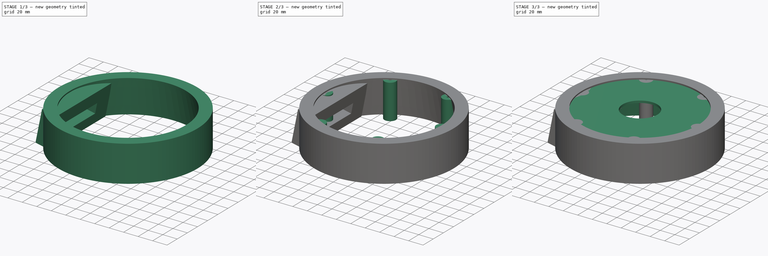
[diagram: build sequence overview — one tinted view per stage of 3, left to right]
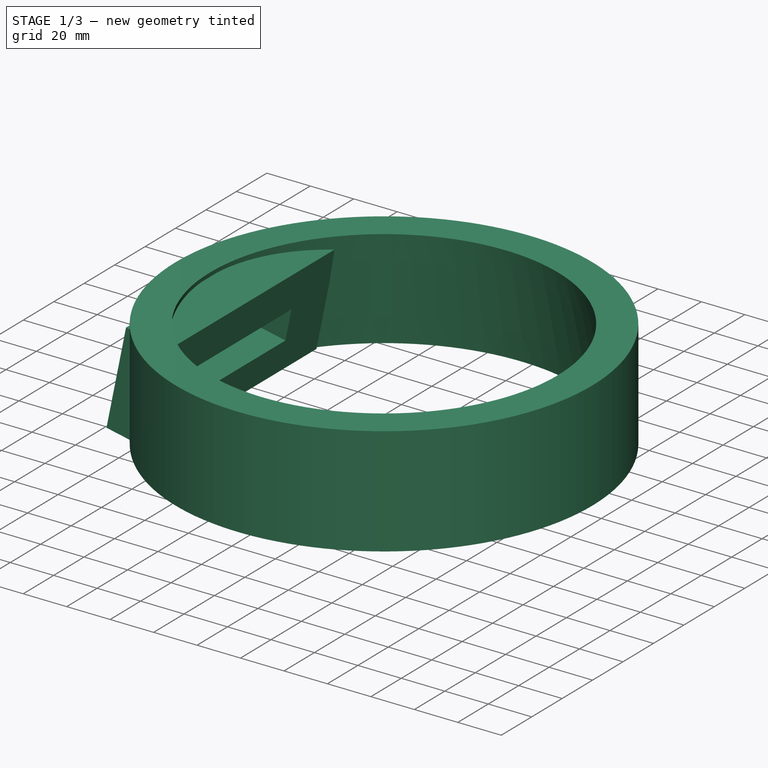
[diagram: stage 1 of 3 — iso view after this stage's code; geometry added in this stage tinted green]
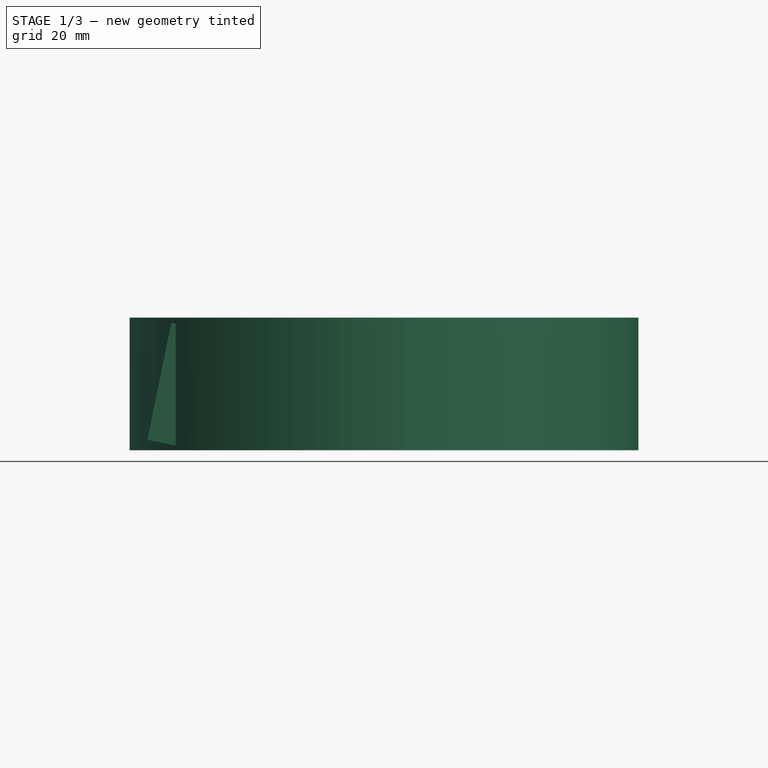
[diagram: stage 1 of 3 — front view after this stage's code; geometry added in this stage tinted green]
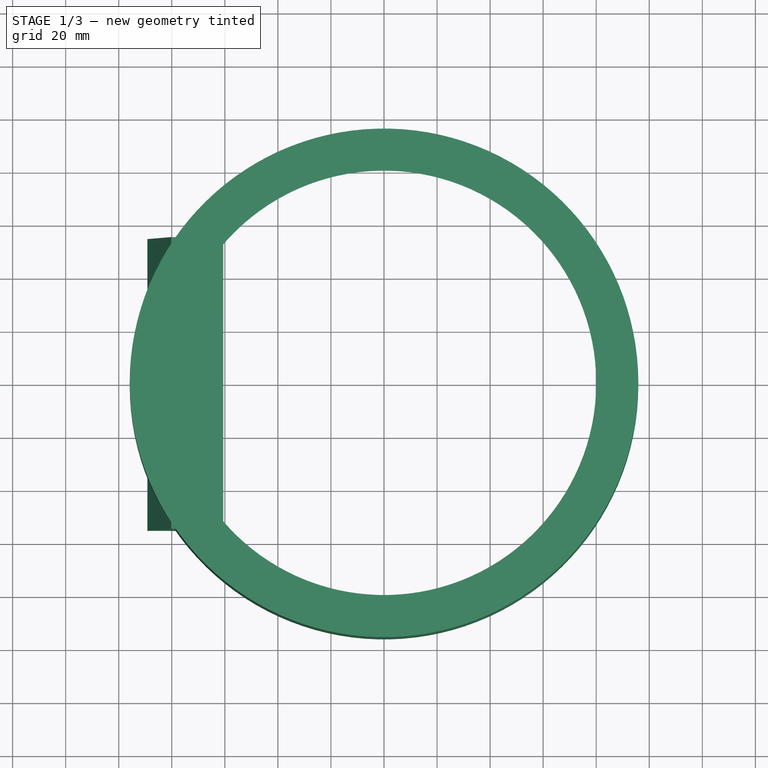
[diagram: stage 1 of 3 — top view after this stage's code; geometry added in this stage tinted green]
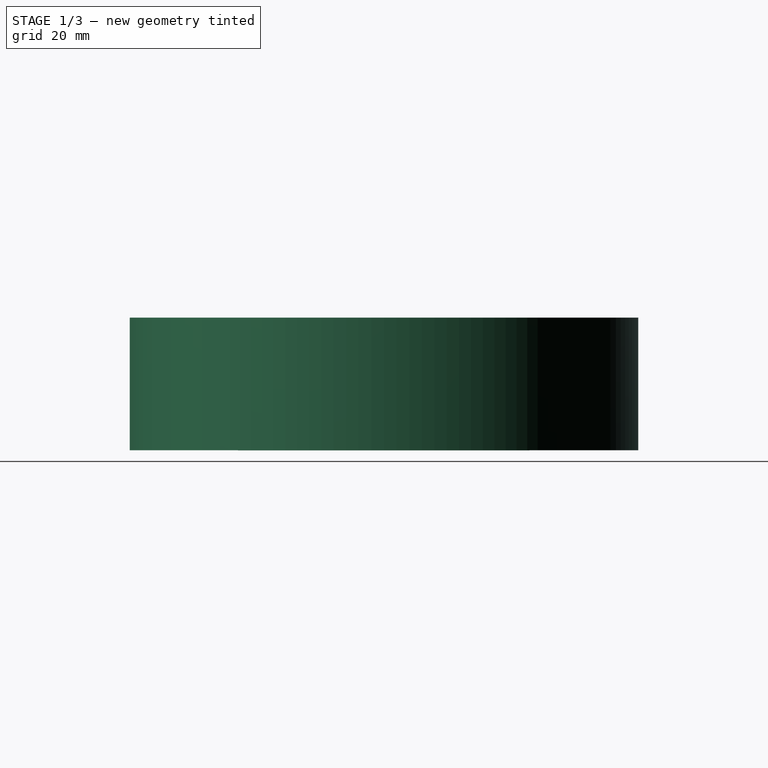
[diagram: stage 1 of 3 — right view after this stage's code; geometry added in this stage tinted green]
FCSTD DOCUMENT  (FreeCAD 0.16R6707 (Git))
Label: top
License: All rights reserved
LicenseURL: http://en.wikipedia.org/wiki/All_rights_reserved
objects: Sketcher::SketchObject×5, PartDesign::Revolution×2, PartDesign::Pad×2, Part::MultiFuse×1, Part::Cut×1, Part::Feature×1
note: 16 computed .brp shape members not serialized (recipe doc carries the construction recipe); baked Part::Feature solids carry a one-line shape summary decoded from their .brp

FEATURE [Sketcher::SketchObject] Sketch002  label="Outer Cut"
  Placement = pos=(0,0,0) rot=(1,0,0;1.5708rad)
  sketch-geometry (4):
    g0: LineSegment StartX=-80 StartY=50 StartZ=0 EndX=-90 EndY=0 EndZ=0
    g1: LineSegment StartX=-80 StartY=50 StartZ=0 EndX=-95.8804 EndY=50 EndZ=0
    g2: LineSegment StartX=-95.8804 StartY=50 StartZ=0 EndX=-95.8804 EndY=0 EndZ=0
    g3: LineSegment StartX=-95.8804 StartY=0 StartZ=0 EndX=-90 EndY=0 EndZ=0
  constraints (10):
    c: PointOnObject(g0,g-1)
    c: DistanceX(g0,g-1) = 90
    c: DistanceX(g0,g-1) = 80
    c: Coincident(g0,g1)
    c: Horizontal(g1)
    c: Coincident(g1,g2)
    c: Vertical(g2)
    c: Coincident(g2,g3)
    c: Horizontal(g3)
    c: Coincident(g3,g0)
FEATURE [PartDesign::Revolution] Revolution001
  Angle = 360
  Axis = (0,0,1)
  Base = (0,0,0)
  Placement = pos=(0,0,0) rot=(1,0,0;1.5708rad)
  ReferenceAxis = -> Sketch002 [V_Axis]
  Sketch = -> Sketch002
FEATURE [Part::Cut] Cut
  Base = -> Fusion
  Tool = -> Revolution001
FEATURE [Sketcher::SketchObject] Sketch003  label="Aux01"
  Placement = pos=(0,0,0) rot=(1,0,0;1.5708rad)
  sketch-geometry (4):
    g0: LineSegment StartX=-79.8003 StartY=49.985 StartZ=0 EndX=-90 EndY=0 EndZ=0
    g1: LineSegment StartX=-90 StartY=0 StartZ=0 EndX=-87 EndY=0 EndZ=0
    g2: LineSegment StartX=-87 StartY=0 StartZ=0 EndX=-76.8003 EndY=49.985 EndZ=0
    g3: LineSegment StartX=-79.8003 StartY=49.985 StartZ=0 EndX=-76.8003 EndY=49.985 EndZ=0
  constraints (11):
    c: PointOnObject(g0,g-1)
    c: Coincident(g0,g1)
    c: PointOnObject(g1,g-1)
    c: Coincident(g1,g2)
    c: DistanceX(g0,g-1) = 90
    c: DistanceX(g0,g1) = 3
    c: Parallel(g0,g2)
    c: Coincident(g0,g3)
    c: Horizontal(g3)
    c: DistanceX(g0,g3) = 3
    c: Coincident(g2,g3)
FEATURE [Sketcher::SketchObject] Sketch004  label="Display"
  Placement = pos=(-86.4024,0,17.6308) rot=(-0.632481,0,0.774576;3.14159rad)
  sketch-geometry (8):
    g0: LineSegment StartX=-15.5 StartY=16.8564 StartZ=0 EndX=-1.5 EndY=16.8564 EndZ=0
    g1: LineSegment StartX=-1.5 StartY=16.8564 StartZ=0 EndX=-1.5 EndY=-48.1436 EndZ=0
    g2: LineSegment StartX=-1.5 StartY=-48.1436 StartZ=0 EndX=-15.5 EndY=-48.1436 EndZ=0
    g3: LineSegment StartX=-15.5 StartY=-48.1436 StartZ=0 EndX=-15.5 EndY=16.8564 EndZ=0
    g4: LineSegment StartX=-31 StartY=55 StartZ=0 EndX=14 EndY=55 EndZ=0
    g5: LineSegment StartX=14 StartY=55 StartZ=0 EndX=14 EndY=-55 EndZ=0
    g6: LineSegment StartX=14 StartY=-55 StartZ=0 EndX=-31 EndY=-55 EndZ=0
    g7: LineSegment StartX=-31 StartY=-55 StartZ=0 EndX=-31 EndY=55 EndZ=0
  constraints (23):
    c: Coincident(g0,g1)
    c: Coincident(g1,g2)
    c: Coincident(g2,g3)
    c: Coincident(g3,g0)
    c: Horizontal(g0)
    c: Horizontal(g2)
    c: Vertical(g1)
    c: Vertical(g3)
    c: DistanceX(g2,g1) = 14
    c: DistanceY(g1,g0) = 65
    c: Coincident(g4,g5)
    c: Coincident(g5,g6)
    c: Coincident(g6,g7)
    c: Coincident(g7,g4)
    c: Horizontal(g4)
    c: Horizontal(g6)
    c: Vertical(g5)
    c: Vertical(g7)
    c: Symmetric(g6,g4,g-1)
    c: DistanceY(g6,g4) = 110
    c: DistanceX(g6,g5) = 45
    c: DistanceX(g-1,g5) = 14
    c: DistanceX(g1,g5) = 15.5
FEATURE [Part::Feature] Cut001
  shape: bbox 180 x 180 x 50 mm, 39 faces (baked)
FEATURE [PartDesign::Pad] Pad001
  Length = 20
  Length2 = 100
  Placement = pos=(-86.4024,0,17.6308) rot=(-0.632481,0,0.774576;3.14159rad)
  Reversed = true
  Sketch = -> Sketch004
  Type = 0
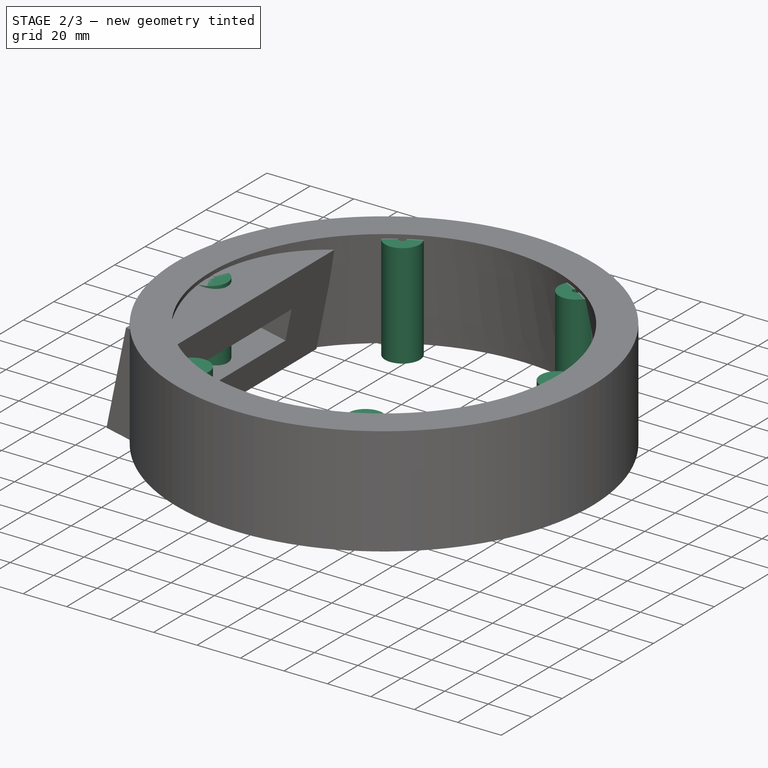
[diagram: stage 2 of 3 — iso view after this stage's code; geometry added in this stage tinted green]
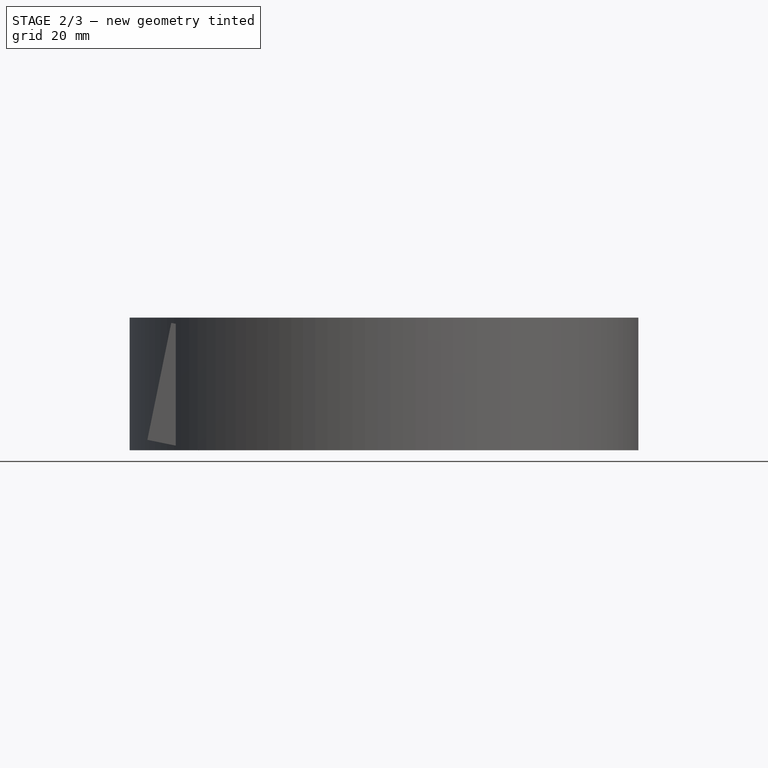
[diagram: stage 2 of 3 — front view after this stage's code; geometry added in this stage tinted green]
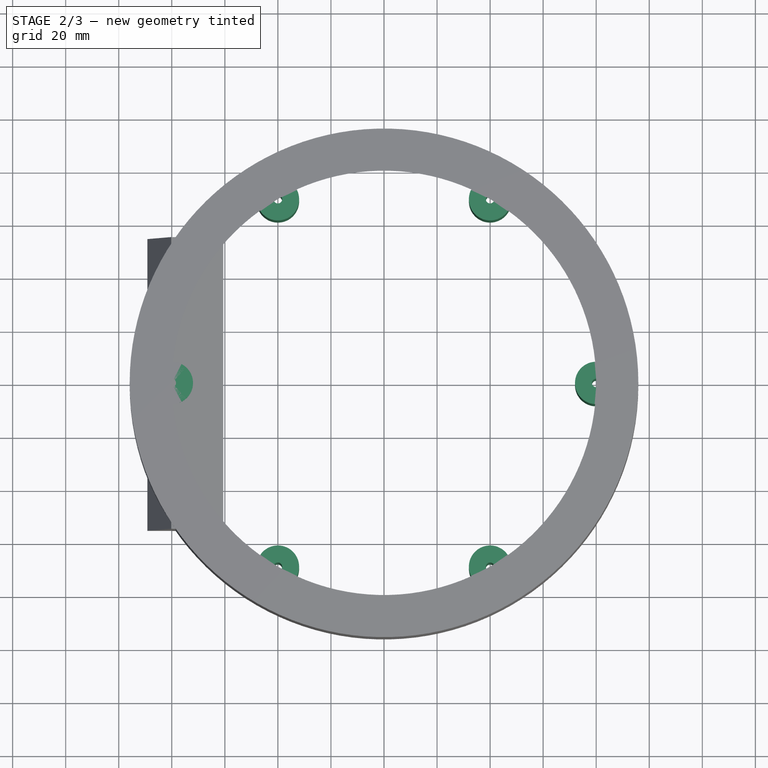
[diagram: stage 2 of 3 — top view after this stage's code; geometry added in this stage tinted green]
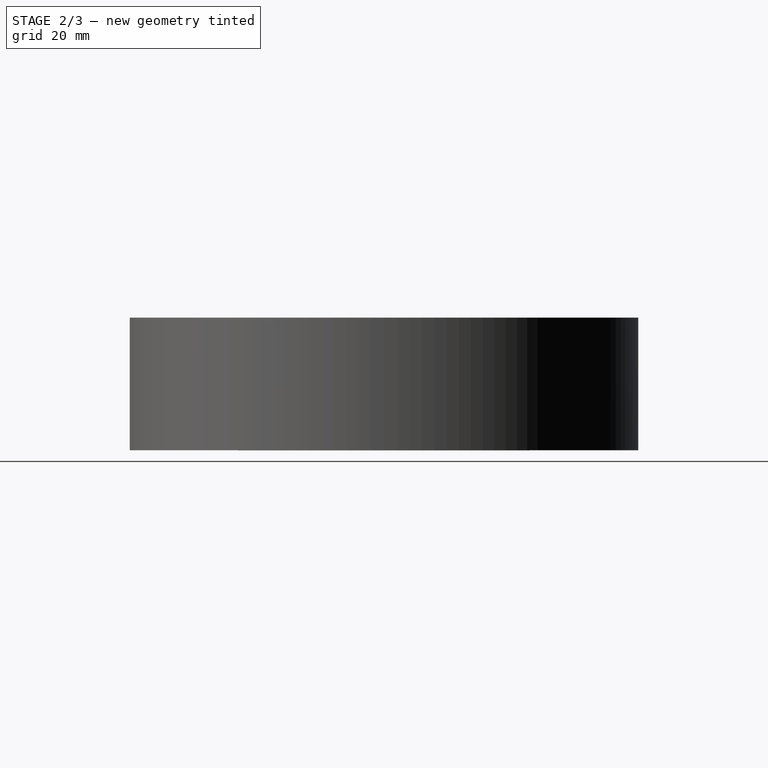
[diagram: stage 2 of 3 — right view after this stage's code; geometry added in this stage tinted green]
FEATURE [Sketcher::SketchObject] Sketch001  label="Screw Pillars"
  sketch-geometry (19):
    g0: LineSegment [constr] StartX=40 StartY=69.282 StartZ=0 EndX=-40 EndY=69.282 EndZ=0
    g1: LineSegment [constr] StartX=-40 StartY=69.282 StartZ=0 EndX=-80 EndY=0 EndZ=0
    g2: LineSegment [constr] StartX=-80 StartY=0 StartZ=0 EndX=-40 EndY=-69.282 EndZ=0
    g3: LineSegment [constr] StartX=-40 StartY=-69.282 StartZ=0 EndX=40 EndY=-69.282 EndZ=0
    g4: LineSegment [constr] StartX=40 StartY=-69.282 StartZ=0 EndX=80 EndY=0 EndZ=0
    g5: LineSegment [constr] StartX=80 StartY=0 StartZ=0 EndX=40 EndY=69.282 EndZ=0
    g6: Circle [constr] CenterX=0 CenterY=0 CenterZ=0 NormalX=0 NormalY=0 NormalZ=1 Radius=80
    g7: Circle CenterX=-40 CenterY=69.282 CenterZ=0 NormalX=0 NormalY=0 NormalZ=1 Radius=8
    g8: Circle CenterX=40 CenterY=69.282 CenterZ=0 NormalX=0 NormalY=0 NormalZ=1 Radius=8
    g9: Circle CenterX=80 CenterY=0 CenterZ=0 NormalX=0 NormalY=0 NormalZ=1 Radius=8
    g10: Circle CenterX=40 CenterY=-69.282 CenterZ=0 NormalX=0 NormalY=0 NormalZ=1 Radius=8
    g11: Circle CenterX=-40 CenterY=-69.282 CenterZ=0 NormalX=0 NormalY=0 NormalZ=1 Radius=8
    g12: Circle CenterX=-80 CenterY=0 CenterZ=0 NormalX=0 NormalY=0 NormalZ=1 Radius=8
    g13: Circle CenterX=-40 CenterY=69.282 CenterZ=0 NormalX=0 NormalY=0 NormalZ=1 Radius=1.6
    g14: Circle CenterX=80 CenterY=0 CenterZ=0 NormalX=0 NormalY=0 NormalZ=1 Radius=1.6
    g15: Circle CenterX=40 CenterY=-69.282 CenterZ=0 NormalX=0 NormalY=0 NormalZ=1 Radius=1.6
    g16: Circle CenterX=-40 CenterY=-69.282 CenterZ=0 NormalX=0 NormalY=0 NormalZ=1 Radius=1.6
    g17: Circle CenterX=-80 CenterY=0 CenterZ=0 NormalX=0 NormalY=0 NormalZ=1 Radius=1.6
    g18: Circle CenterX=40 CenterY=69.282 CenterZ=0 NormalX=0 NormalY=0 NormalZ=1 Radius=1.6
  constraints (40):
    c: Coincident(g0,g1)
    c: Coincident(g1,g2)
    c: Coincident(g2,g3)
    c: Coincident(g3,g4)
    c: Coincident(g4,g5)
    c: Coincident(g5,g0)
    c: Equal(g0, g1-g5) x5
    c: PointOnObject(g0,g6)
    c: PointOnObject(g1,g6)
    c: PointOnObject(g2,g6)
    c: PointOnObject(g3,g6)
    c: PointOnObject(g4,g6)
    c: PointOnObject(g5,g6)
    c: PointOnObject(g4,g-1)
    c: Radius(g6) = 80
    c: Coincident(g7,g0)
    c: Coincident(g8,g0)
    c: Coincident(g9,g4)
    c: Coincident(g10,g3)
    c: Coincident(g11,g2)
    c: Coincident(g12,g1)
    c: Radius(g7) = 8
    c: Equal(g7,g8)
    c: Equal(g8,g9)
    c: Equal(g9,g10)
    c: Equal(g10,g11)
    c: Equal(g11,g12)
    c: Coincident(g13,g0)
    c: Coincident(g14,g4)
    c: Coincident(g15,g3)
    c: Coincident(g16,g2)
    c: Coincident(g17,g1)
    c: Coincident(g18,g0)
    c: Radius(g13) = 1.6
    c: Equal(g13,g18)
    c: Equal(g18,g14)
    c: Equal(g14,g15)
    c: Equal(g15,g16)
    c: Equal(g16,g17)
    c: Coincident(g6,g-1)
FEATURE [PartDesign::Pad] Pad
  Length = 48
  Length2 = 100
  Sketch = -> Sketch001
  Type = 0
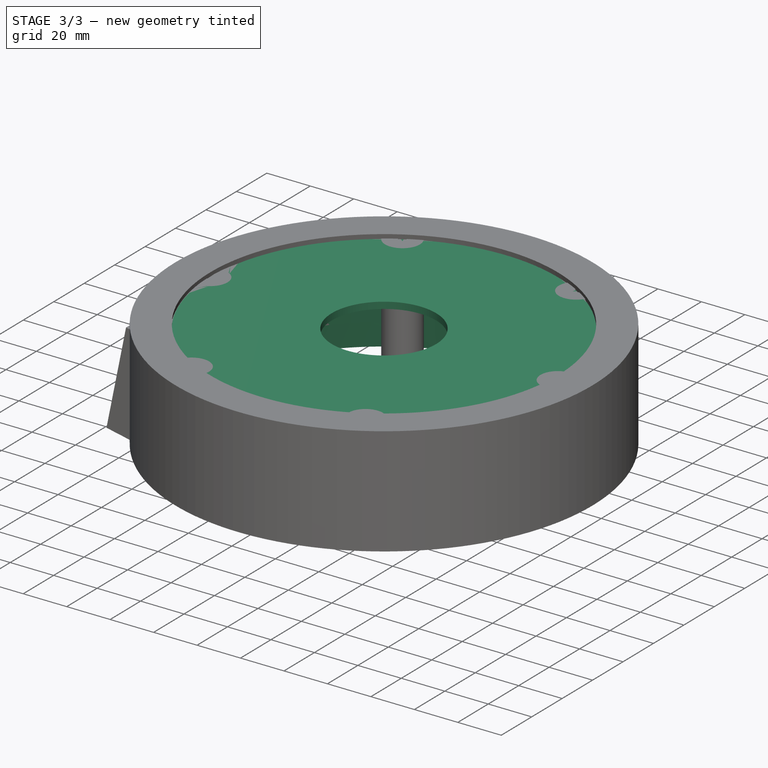
[diagram: stage 3 of 3 — iso view after this stage's code; geometry added in this stage tinted green]
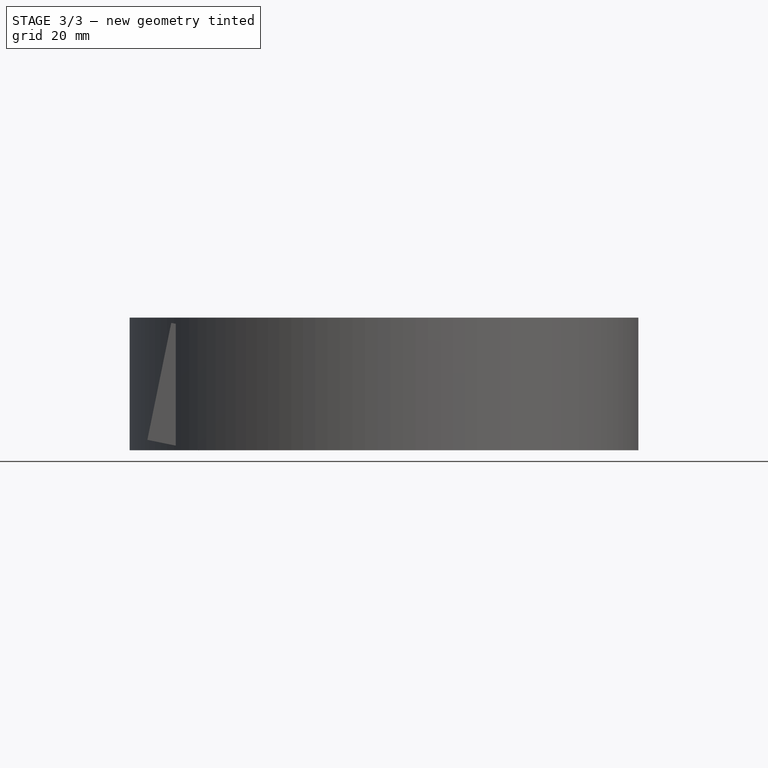
[diagram: stage 3 of 3 — front view after this stage's code; geometry added in this stage tinted green]
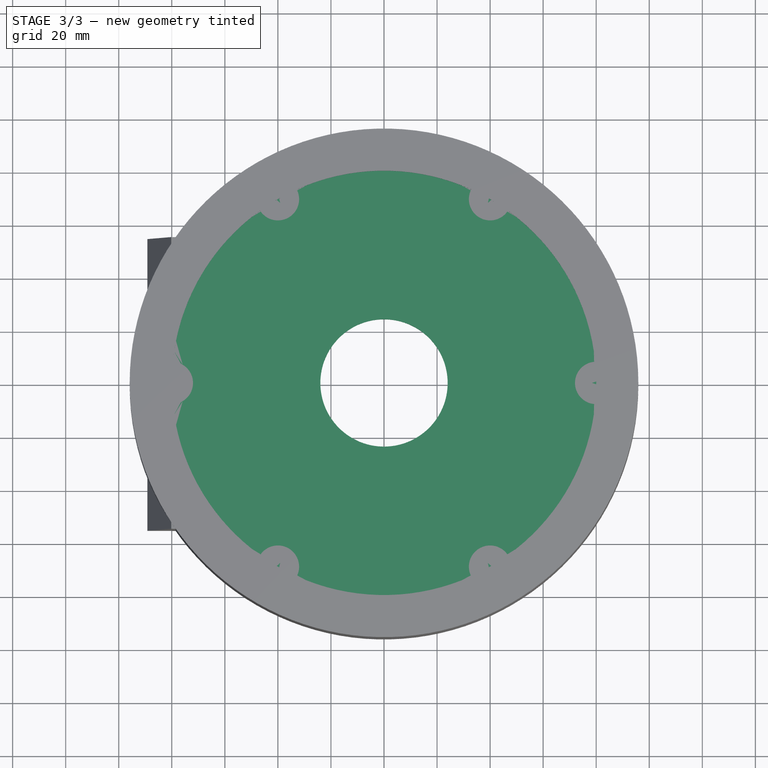
[diagram: stage 3 of 3 — top view after this stage's code; geometry added in this stage tinted green]
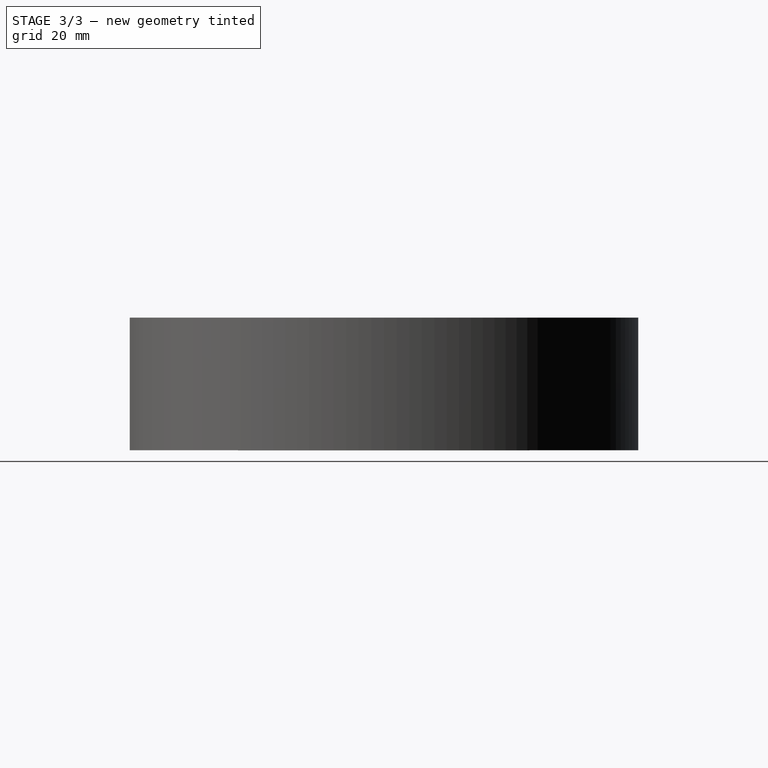
[diagram: stage 3 of 3 — right view after this stage's code; geometry added in this stage tinted green]
FEATURE [Sketcher::SketchObject] Sketch  label="Body"
  Placement = pos=(0,0,0) rot=(1,0,0;1.5708rad)
  sketch-geometry (7):
    g0: LineSegment StartX=-80 StartY=48 StartZ=0 EndX=-90 EndY=1.7029e-08 EndZ=0
    g1: LineSegment StartX=-90 StartY=1.7029e-08 StartZ=0 EndX=-87 EndY=-1.8154e-08 EndZ=0
    g2: LineSegment StartX=-87 StartY=-1.8154e-08 StartZ=0 EndX=-77.6248 EndY=45 EndZ=0
    g3: LineSegment StartX=-77.6248 StartY=45 StartZ=0 EndX=-24 EndY=45 EndZ=0
    g4: LineSegment StartX=-24 StartY=45 StartZ=0 EndX=-24 EndY=48 EndZ=0
    g5: LineSegment StartX=-80 StartY=48 StartZ=0 EndX=-80 EndY=48 EndZ=0
    g6: LineSegment StartX=-80 StartY=48 StartZ=0 EndX=-24 EndY=48 EndZ=0
  constraints (21):
    c: PointOnObject(g0,g-1)
    c: Coincident(g0,g1)
    c: PointOnObject(g1,g-1)
    c: Coincident(g1,g2)
    c: Coincident(g2,g3)
    c: Horizontal(g3)
    c: Coincident(g3,g4)
    c: DistanceX(g0,g-1) = 90
    c: DistanceX(g0,g-1) = 80
    c: DistanceX(g0,g1) = 3
    c: Parallel(g0,g2)
    c: DistanceY(g2,g0) = 3
    c: Vertical(g4)
    c: DistanceX(g3,g-1) = 24
    c: Vertical(g5)
    c: Coincident(g5,g6)
    c: Horizontal(g6)
    c: Coincident(g6,g4)
    c: Equal(g1,g4)
    c: DistanceY(g-1,g4) = 48
    c: Coincident(g5,g0)
FEATURE [PartDesign::Revolution] Revolution
  Angle = 360
  Axis = (0,0,1)
  Base = (0,0,0)
  Placement = pos=(0,0,0) rot=(1,0,0;1.5708rad)
  ReferenceAxis = -> Sketch [V_Axis]
  Sketch = -> Sketch
FEATURE [Part::MultiFuse] Fusion
  Shapes = -> [Pad,Revolution]
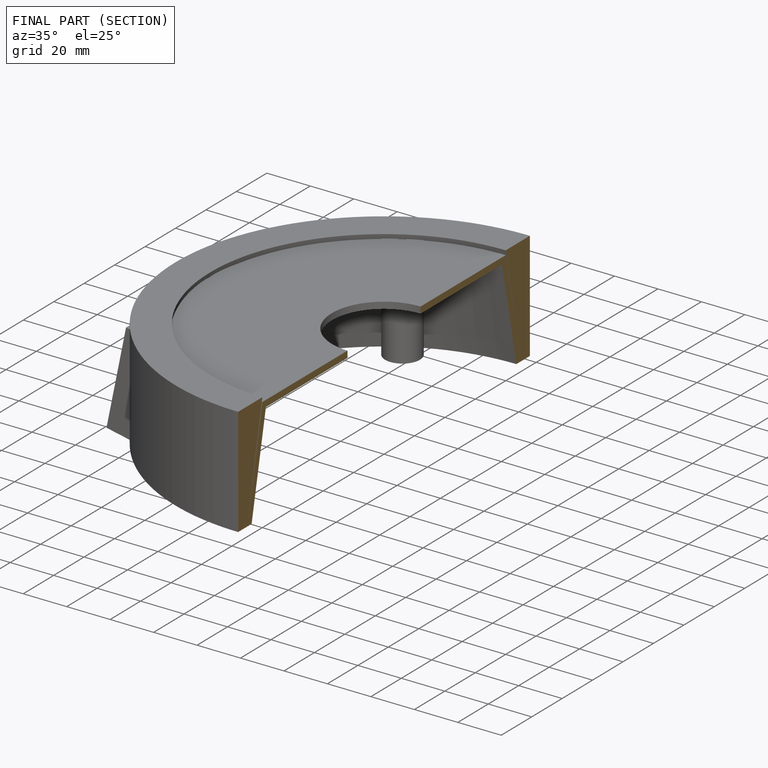
[diagram: finished part — half-section view (interior)]
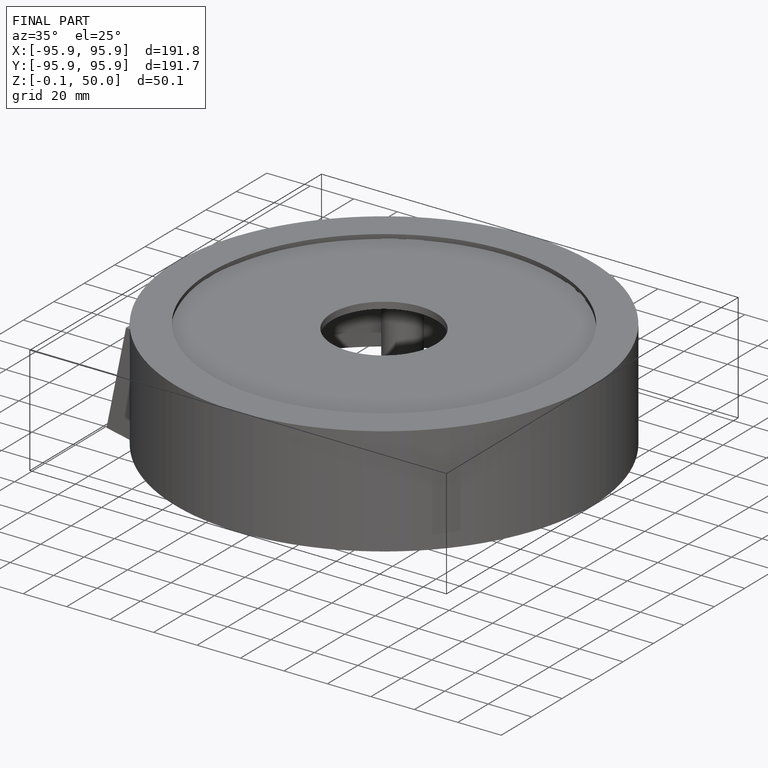
[diagram: finished part — iso view with bounding-box wireframe]
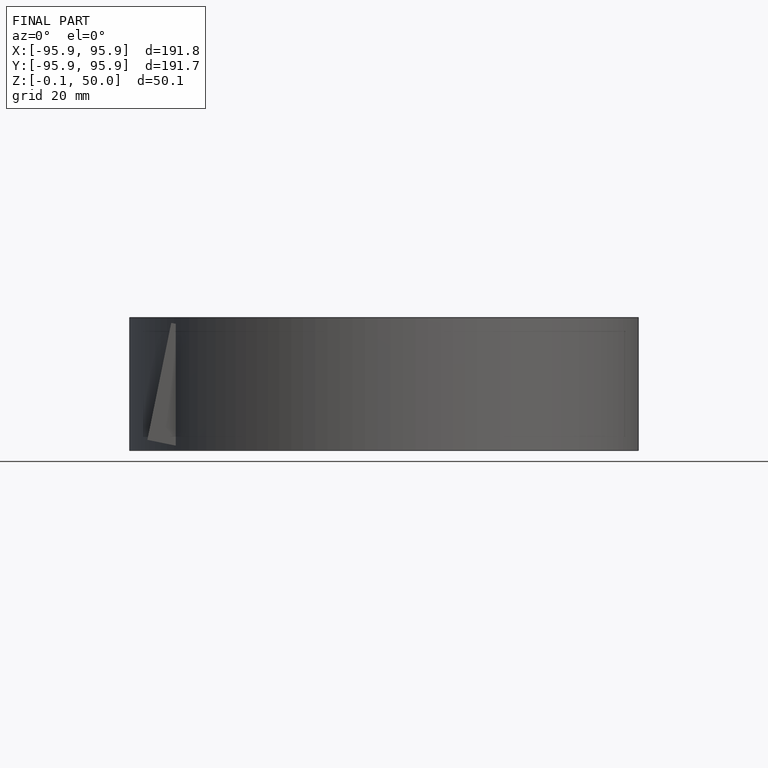
[diagram: finished part — front view with bounding-box wireframe]
